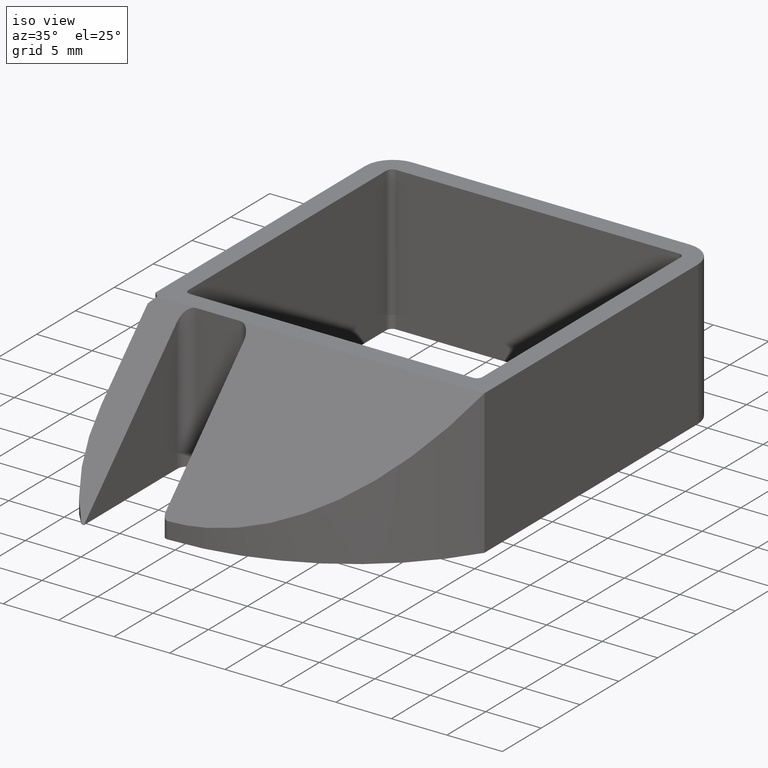
[diagram: clean part render]
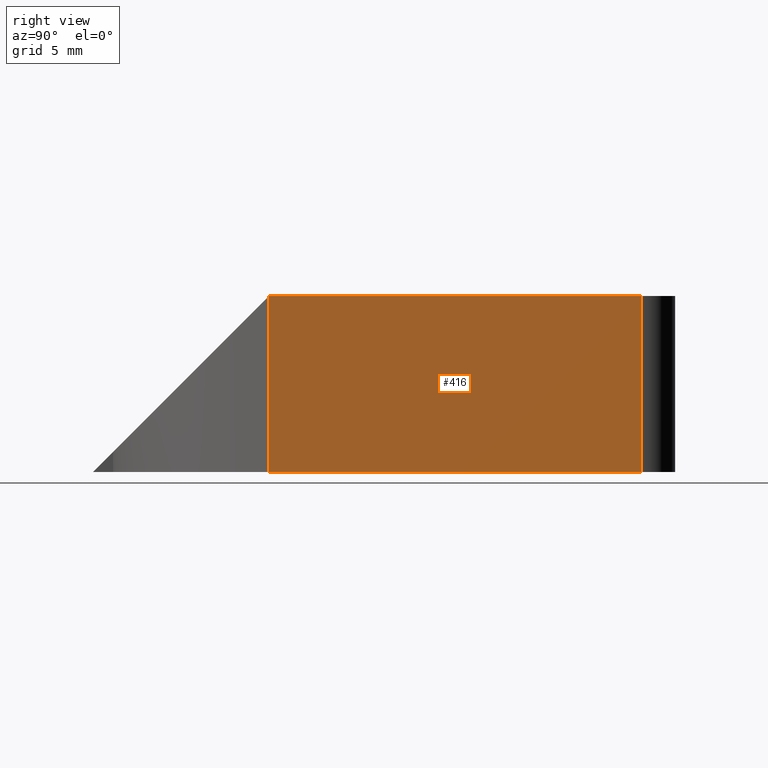
[diagram: tour spotlight — one face highlighted and labeled with its STEP entity id]
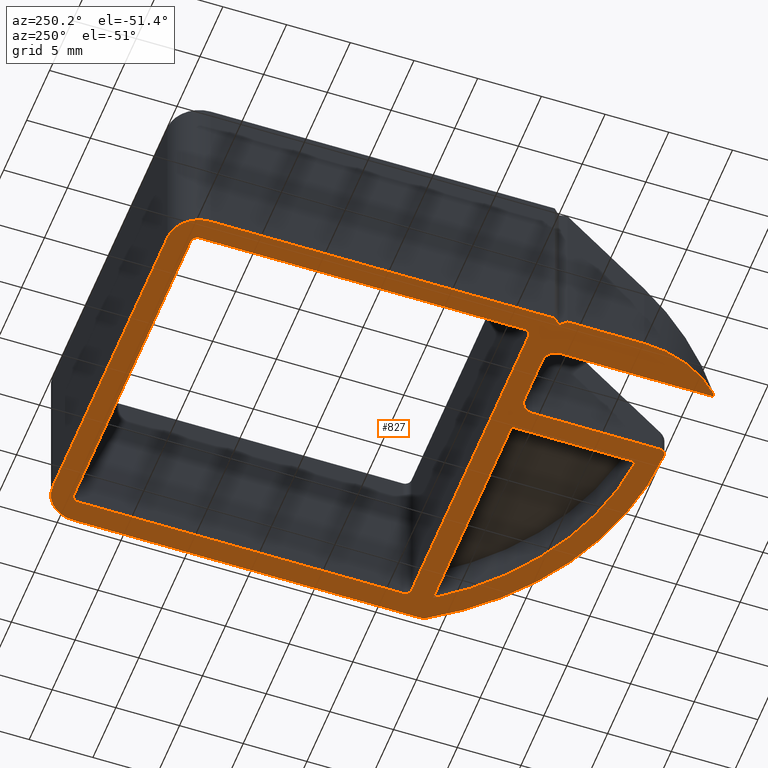
[diagram: tour spotlight — one face highlighted and labeled with its STEP entity id]
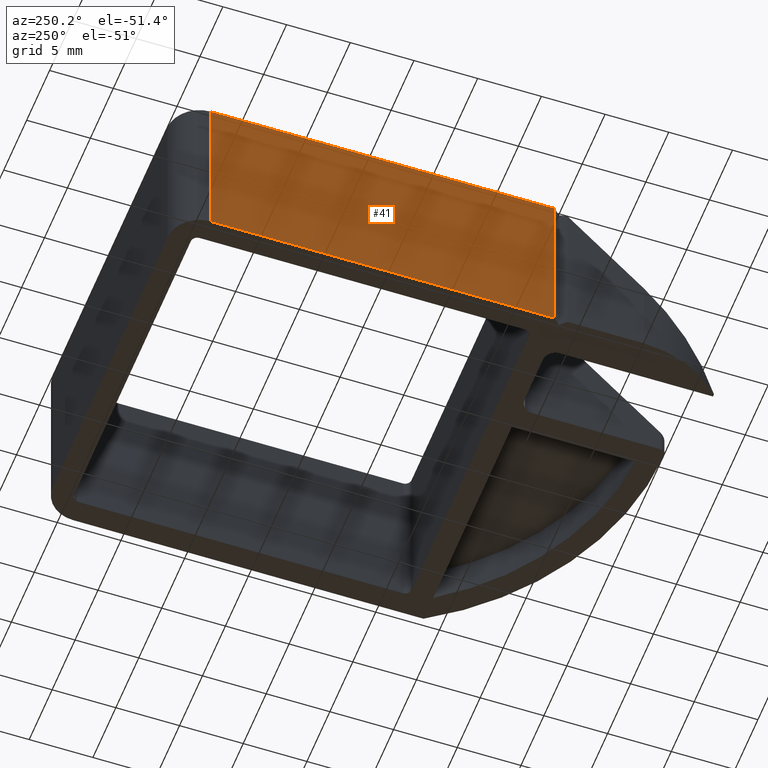
[diagram: tour spotlight — one face highlighted and labeled with its STEP entity id]
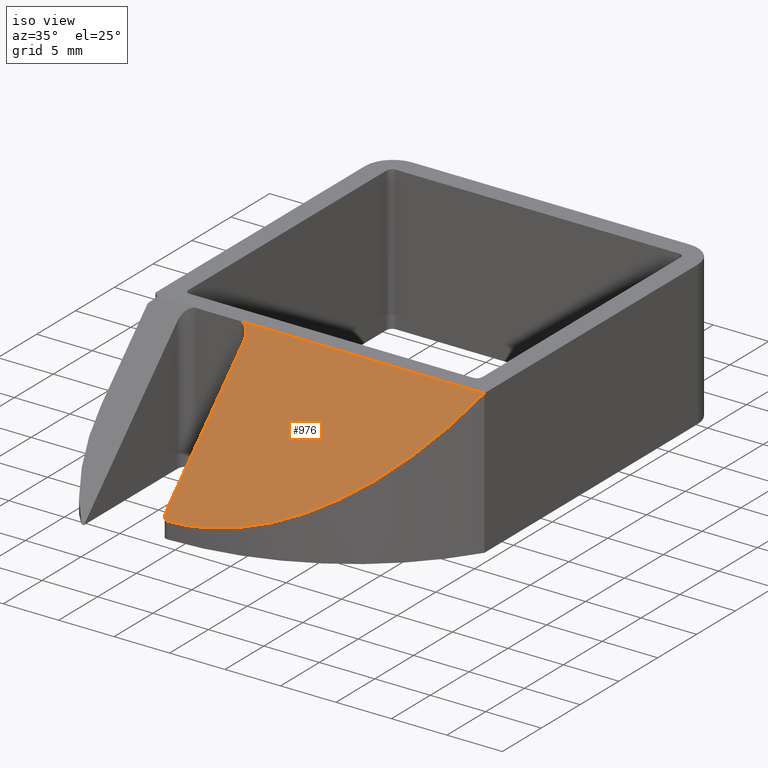
[diagram: tour spotlight — one face highlighted and labeled with its STEP entity id]
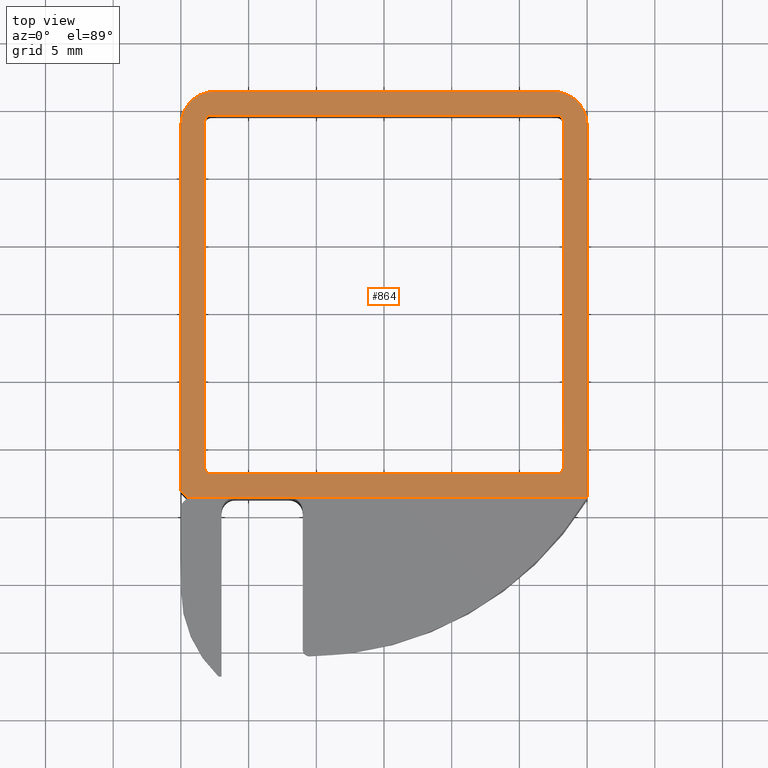
[diagram: tour spotlight — one face highlighted and labeled with its STEP entity id]
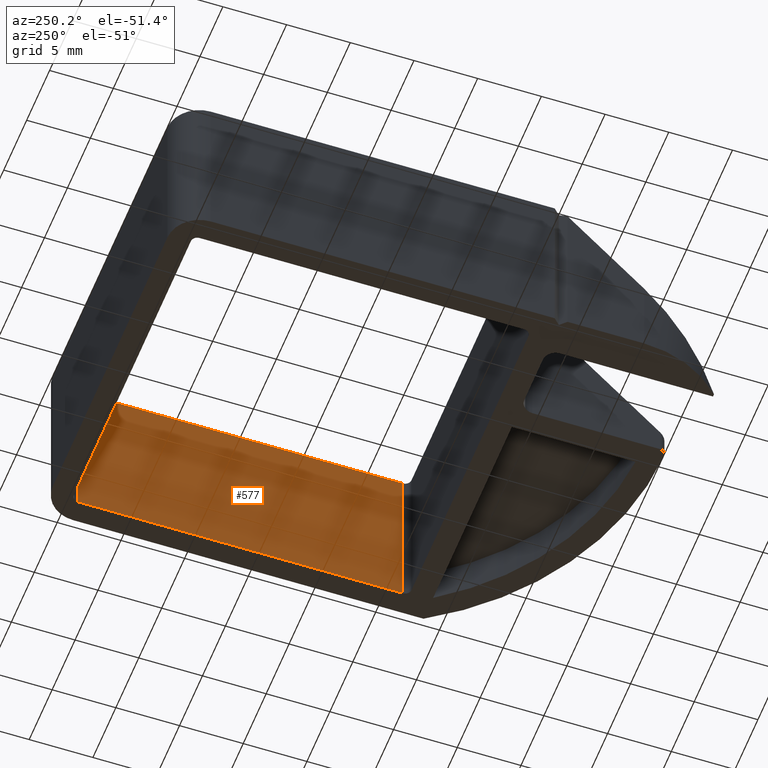
[diagram: tour spotlight — one face highlighted and labeled with its STEP entity id]
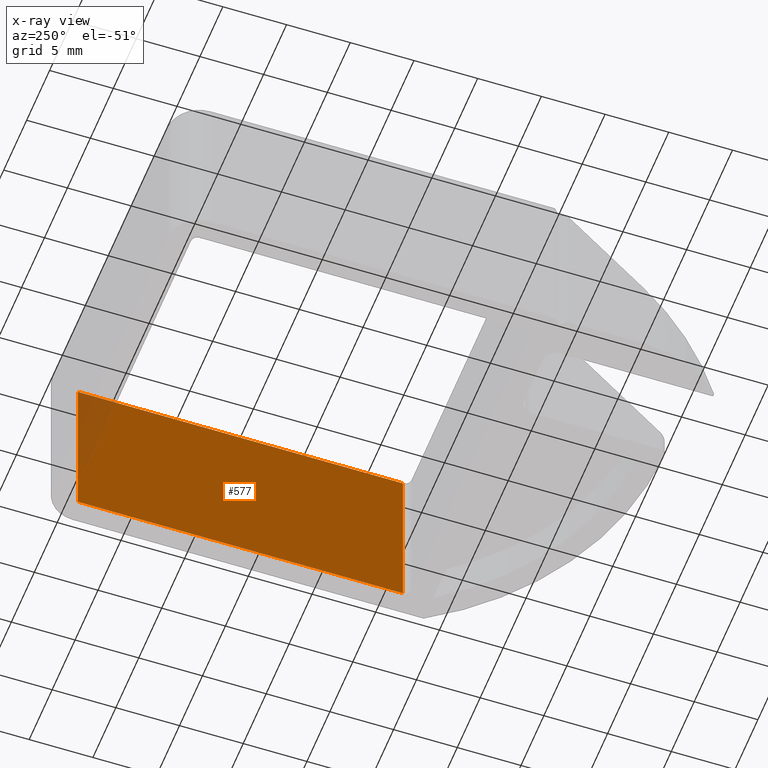
[diagram: x-ray of the same camera — body ghosted, this tour face saturated]
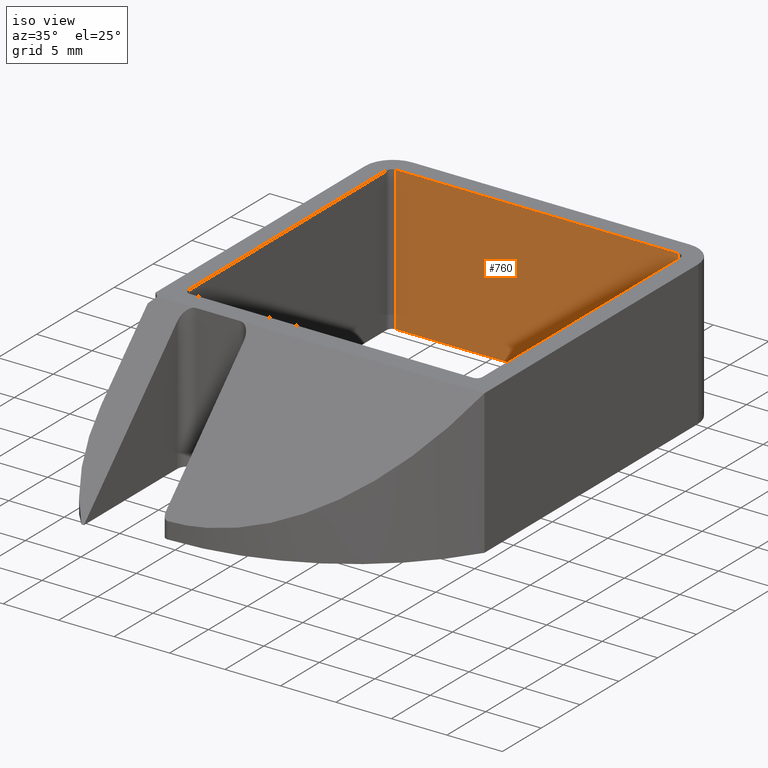
[diagram: tour spotlight — one face highlighted and labeled with its STEP entity id]
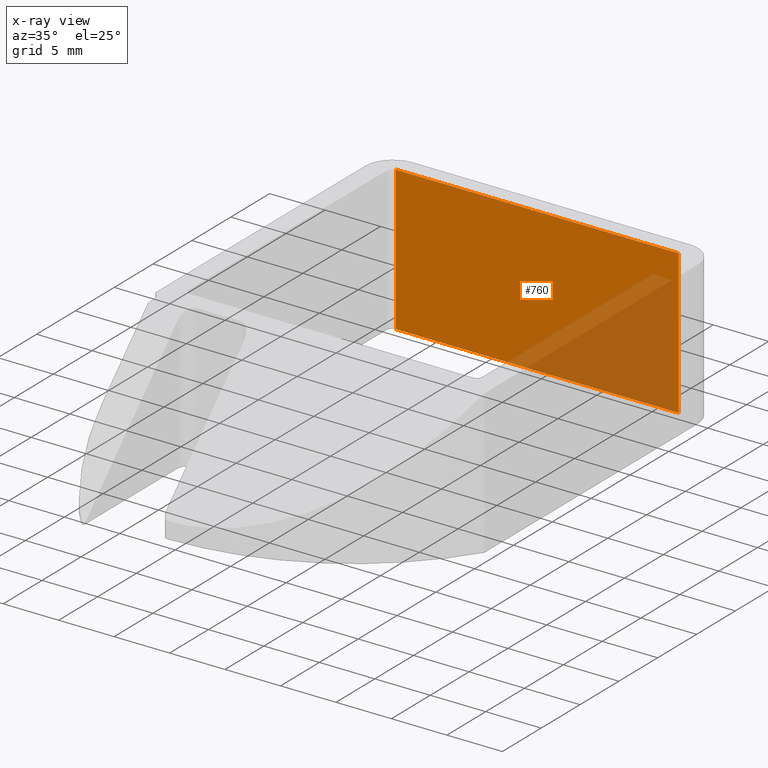
[diagram: x-ray of the same camera — body ghosted, this tour face saturated]
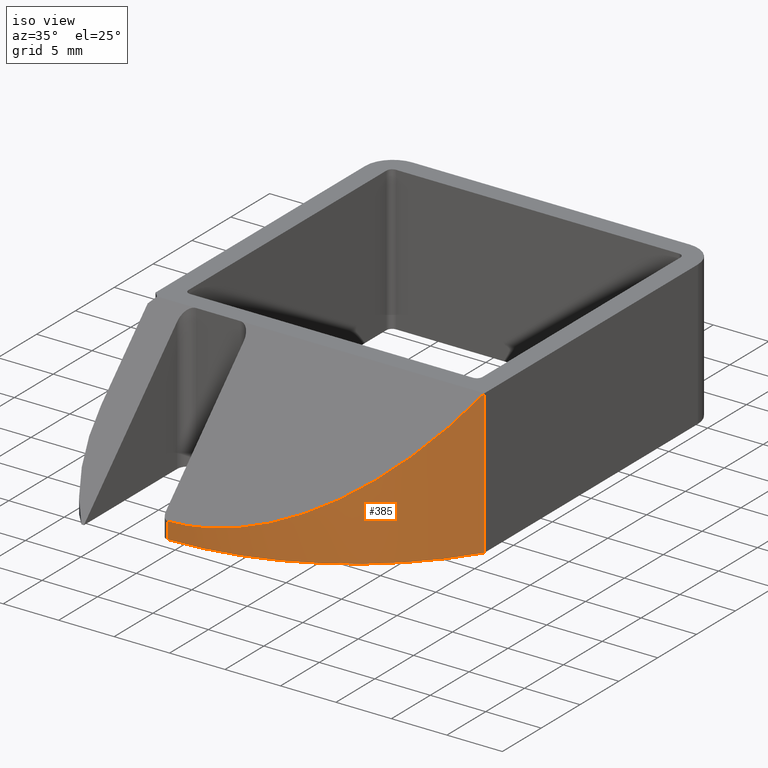
[diagram: tour spotlight — one face highlighted and labeled with its STEP entity id]
A machine part: a face-by-face anatomy tour. The part has 32 B-rep faces; the first image is the clean iso view, then the 8 largest visible faces are spotlighted one at a time (largest first), each with its STEP entity span.

Face 1 — right view, entity #416. In plain terms, the highlighted planar face has unit normal (1, 0, 0).
Definition (entity closure, byte-faithful):
#358=CARTESIAN_POINT('',(0.0,-13.749999999999998,0.0));
#359=VERTEX_POINT('',#358);
#367=CARTESIAN_POINT('',(0.0,-13.749999999999998,12.999999999999773));
#368=VERTEX_POINT('',#367);
#369=CARTESIAN_POINT('',(0.0,-13.749999999999998,0.0));
#370=DIRECTION('',(0.0,0.0,1.0));
#371=VECTOR('',#370,12.999999999999773);
#372=LINE('',#369,#371);
#373=EDGE_CURVE('',#359,#368,#372,.T.);
#386=CARTESIAN_POINT('',(0.0,-13.749999999999998,0.0));
#387=DIRECTION('',(1.0,0.0,0.0));
#388=DIRECTION('',(0.0,1.0,0.0));
#389=AXIS2_PLACEMENT_3D('',#386,#387,#388);
#390=PLANE('',#389);
#391=CARTESIAN_POINT('',(0.0,13.750000000000002,1.776357E-015));
#392=VERTEX_POINT('',#391);
#393=CARTESIAN_POINT('',(3.367779E-015,-13.749999999999998,-1.591422E-015));
#394=DIRECTION('',(0.0,1.0,0.0));
#395=VECTOR('',#394,27.500000000000000);
#396=LINE('',#393,#395);
#397=EDGE_CURVE('',#359,#392,#396,.T.);
#398=ORIENTED_EDGE('',*,*,#397,.T.);
#399=CARTESIAN_POINT('',(0.0,13.750000000000002,12.999999999999774));
#400=VERTEX_POINT('',#399);
#401=CARTESIAN_POINT('',(0.0,13.750000000000002,1.776357E-015));
#402=DIRECTION('',(0.0,0.0,1.0));
#403=VECTOR('',#402,12.999999999999773);
#404=LINE('',#401,#403);
#405=EDGE_CURVE('',#392,#400,#404,.T.);
#406=ORIENTED_EDGE('',*,*,#405,.T.);
#407=CARTESIAN_POINT('',(3.367779E-015,-13.749999999999998,12.999999999999771));
#408=DIRECTION('',(0.0,1.0,0.0));
#409=VECTOR('',#408,27.500000000000000);
#410=LINE('',#407,#409);
#411=EDGE_CURVE('',#368,#400,#410,.T.);
#412=ORIENTED_EDGE('',*,*,#411,.F.);
#413=ORIENTED_EDGE('',*,*,#373,.F.);
#414=EDGE_LOOP('',(#398,#406,#412,#413));
#415=FACE_OUTER_BOUND('',#414,.T.);
#416=ADVANCED_FACE('',(#415),#390,.T.);

Face 2 — auxiliary view, entity #827. In plain terms, the highlighted planar face has unit normal (0, 0, 1).
Definition (entity closure, byte-faithful):
#7=CARTESIAN_POINT('',(-29.999999999999886,13.749999999999998,1.776357E-015));
#8=VERTEX_POINT('',#7);
#9=CARTESIAN_POINT('',(-29.999999999999883,-13.249472180259092,0.0));
#10=VERTEX_POINT('',#9);
#11=CARTESIAN_POINT('',(-29.999999999999886,13.749999999999998,3.306482E-015));
#12=DIRECTION('',(0.0,-1.0,0.0));
#13=VECTOR('',#12,26.999472180259090);
#14=LINE('',#11,#13);
#15=EDGE_CURVE('',#8,#10,#14,.T.);
#47=CARTESIAN_POINT('',(-29.499999999999996,-13.750000000000002,0.0));
#48=VERTEX_POINT('',#47);
#49=CARTESIAN_POINT('',(-29.999999999999883,-13.249472180259092,6.129698E-017));
#50=DIRECTION('',(0.706733654818065,-0.707479710767383,-8.664128E-017));
#51=VECTOR('',#50,0.707480104550280);
#52=LINE('',#49,#51);
#53=EDGE_CURVE('',#10,#48,#52,.T.);
#78=CARTESIAN_POINT('',(-29.999999999999883,-14.253249249289185,0.0));
#79=VERTEX_POINT('',#78);
#80=CARTESIAN_POINT('',(-29.499999999999996,-13.750000000000002,0.0));
#81=DIRECTION('',(-0.704812959663884,-0.709393185680435,-8.687561E-017));
#82=VECTOR('',#81,0.709408067976403);
#83=LINE('',#80,#82);
#84=EDGE_CURVE('',#48,#79,#83,.T.);
#109=CARTESIAN_POINT('',(-29.999999999999883,-20.250000000000000,-4.440892E-016));
#110=VERTEX_POINT('',#109);
#111=CARTESIAN_POINT('',(-29.999999999999883,-14.253249249289185,0.0));
#112=DIRECTION('',(0.0,-1.0,0.0));
#113=VECTOR('',#112,5.996750750710815);
#114=LINE('',#111,#113);
#115=EDGE_CURVE('',#79,#110,#114,.T.);
#140=CARTESIAN_POINT('',(-27.224949798994313,-26.750000000000000,-8.881784E-016));
#141=VERTEX_POINT('',#140);
#150=CARTESIAN_POINT('',(-20.999999999999883,-20.250000000000000,-4.440892E-016));
#151=DIRECTION('',(1.499760E-032,-1.224647E-016,1.0));
#152=DIRECTION('',(-1.0,-1.224647E-016,0.0));
#153=AXIS2_PLACEMENT_3D('',#150,#151,#152);
#154=CIRCLE('',#153,9.0);
#155=EDGE_CURVE('',#110,#141,#154,.T.);
#165=CARTESIAN_POINT('',(-26.999999999963844,-26.749999999997499,-8.881784E-016));
#166=VERTEX_POINT('',#165);
#167=CARTESIAN_POINT('',(-26.999999999963848,-14.749999999974081,0.0));
#168=VERTEX_POINT('',#167);
#169=CARTESIAN_POINT('',(-26.999999999963844,-26.749999999997499,-8.881784E-016));
#170=DIRECTION('',(0.0,1.0,0.0));
#171=VECTOR('',#170,12.000000000023419);
#172=LINE('',#169,#171);
#173=EDGE_CURVE('',#166,#168,#172,.T.);
#197=CARTESIAN_POINT('',(-25.999999999963848,-13.749999999974078,0.0));
#198=VERTEX_POINT('',#197);
#199=CARTESIAN_POINT('',(-25.999999999963848,-14.749999999974078,0.0));
#200=DIRECTION('',(-1.499760E-032,1.224647E-016,-1.0));
#201=DIRECTION('',(-1.224647E-016,1.0,1.224647E-016));
#202=AXIS2_PLACEMENT_3D('',#199,#200,#201);
#203=CIRCLE('',#202,1.0);
#204=EDGE_CURVE('',#168,#198,#203,.T.);
#230=CARTESIAN_POINT('',(-21.999999999963734,-13.749999999974078,0.0));
#231=VERTEX_POINT('',#230);
#232=CARTESIAN_POINT('',(-25.999999999963848,-13.749999999974078,0.0));
#233=DIRECTION('',(1.0,0.0,0.0));
#234=VECTOR('',#233,4.000000000000114);
#235=LINE('',#232,#234);
#236=EDGE_CURVE('',#198,#231,#235,.T.);
#261=CARTESIAN_POINT('',(-20.999999999963734,-14.749999999974078,0.0));
#262=VERTEX_POINT('',#261);
#263=CARTESIAN_POINT('',(-21.999999999963734,-14.749999999974078,0.0));
#264=DIRECTION('',(-1.499760E-032,1.224647E-016,-1.0));
#265=DIRECTION('',(1.0,1.224647E-016,0.0));
#266=AXIS2_PLACEMENT_3D('',#263,#264,#265);
#267=CIRCLE('',#266,1.0);
#268=EDGE_CURVE('',#231,#262,#267,.T.);
#294=CARTESIAN_POINT('',(-20.999999999963730,-24.753660414799469,-6.661338E-016));
#295=VERTEX_POINT('',#294);
#296=CARTESIAN_POINT('',(-20.999999999963730,-14.749999999974079,5.589613E-016));
#297=DIRECTION('',(0.0,-1.0,0.0));
#298=VECTOR('',#297,10.003660414825390);
#299=LINE('',#296,#298);
#300=EDGE_CURVE('',#262,#295,#299,.T.);
#325=CARTESIAN_POINT('',(-20.497180464879531,-25.253652464958122,-6.661338E-016));
#326=VERTEX_POINT('',#325);
#327=CARTESIAN_POINT('',(-20.499999999963730,-24.753660414799469,-6.661338E-016));
#328=DIRECTION('',(1.499760E-032,-1.224647E-016,1.0));
#329=DIRECTION('',(-1.0,-1.224647E-016,0.0));
#330=AXIS2_PLACEMENT_3D('',#327,#328,#329);
#331=CIRCLE('',#330,0.500000000000000);
#332=EDGE_CURVE('',#295,#326,#331,.T.);
#358=CARTESIAN_POINT('',(0.0,-13.749999999999998,0.0));
#359=VERTEX_POINT('',#358);
#360=CARTESIAN_POINT('',(-20.633966547492491,-0.997187538485150,6.661338E-016));
#361=DIRECTION('',(1.482966E-032,-1.224647E-016,1.0));
#362=DIRECTION('',(0.005639070168398,-0.999984100317418,-1.224627E-016));
#363=AXIS2_PLACEMENT_3D('',#360,#361,#362);
#364=CIRCLE('',#363,24.256850602697995);
#365=EDGE_CURVE('',#326,#359,#364,.T.);
#391=CARTESIAN_POINT('',(0.0,13.750000000000002,1.776357E-015));
#392=VERTEX_POINT('',#391);
#393=CARTESIAN_POINT('',(3.367779E-015,-13.749999999999998,-1.591422E-015));
#394=DIRECTION('',(0.0,1.0,0.0));
#395=VECTOR('',#394,27.500000000000000);
#396=LINE('',#393,#395);
#397=EDGE_CURVE('',#359,#392,#396,.T.);
#422=CARTESIAN_POINT('',(-2.500000000000000,16.250000000000000,1.776357E-015));
#423=VERTEX_POINT('',#422);
#424=CARTESIAN_POINT('',(-2.500000000000000,13.750000000000002,1.776357E-015));
#425=DIRECTION('',(1.499760E-032,-1.224647E-016,1.0));
#426=DIRECTION('',(-1.0,-1.224647E-016,0.0));
#427=AXIS2_PLACEMENT_3D('',#424,#425,#426);
#428=CIRCLE('',#427,2.500000000000000);
#429=EDGE_CURVE('',#392,#423,#428,.T.);
#455=CARTESIAN_POINT('',(-27.500000000000000,16.250000000000000,1.776357E-015));
#456=VERTEX_POINT('',#455);
#457=CARTESIAN_POINT('',(-2.500000000000000,16.250000000000004,1.776357E-015));
#458=DIRECTION('',(-1.0,0.0,0.0));
#459=VECTOR('',#458,25.0);
#460=LINE('',#457,#459);
#461=EDGE_CURVE('',#423,#456,#460,.T.);
#486=CARTESIAN_POINT('',(-27.500000000000000,13.749999999999998,1.776357E-015));
#487=DIRECTION('',(1.499760E-032,-1.224647E-016,1.0));
#488=DIRECTION('',(-1.0,-1.224647E-016,0.0));
#489=AXIS2_PLACEMENT_3D('',#486,#487,#488);
#490=CIRCLE('',#489,2.500000000000000);
#491=EDGE_CURVE('',#456,#8,#490,.T.);
#510=CARTESIAN_POINT('',(-2.249999999999886,14.500000000000002,1.776357E-015));
#511=VERTEX_POINT('',#510);
#512=CARTESIAN_POINT('',(-1.750000000000000,14.000000000000002,1.776357E-015));
#513=VERTEX_POINT('',#512);
#514=CARTESIAN_POINT('',(-2.249999999999886,14.000000000000002,1.776357E-015));
#515=DIRECTION('',(-1.499760E-032,1.224647E-016,-1.0));
#516=DIRECTION('',(-1.0,-1.224647E-016,0.0));
#517=AXIS2_PLACEMENT_3D('',#514,#515,#516);
#518=CIRCLE('',#517,0.500000000000000);
#519=EDGE_CURVE('',#511,#513,#518,.T.);
#552=CARTESIAN_POINT('',(-1.749999999999886,-11.499999999999998,2.220446E-016));
#553=VERTEX_POINT('',#552);
#554=CARTESIAN_POINT('',(-1.750000000000000,14.000000000000002,1.776357E-015));
#555=DIRECTION('',(0.0,-1.0,0.0));
#556=VECTOR('',#555,25.500000000000000);
#557=LINE('',#554,#556);
#558=EDGE_CURVE('',#513,#553,#557,.T.);
#583=CARTESIAN_POINT('',(-2.249999999999886,-12.000000000000112,0.0));
#584=VERTEX_POINT('',#583);
#585=CARTESIAN_POINT('',(-2.249999999999886,-11.499999999999998,2.220446E-016));
#586=DIRECTION('',(-1.499760E-032,1.224647E-016,-1.0));
#587=DIRECTION('',(-1.0,-1.224647E-016,0.0));
#588=AXIS2_PLACEMENT_3D('',#585,#586,#587);
#589=CIRCLE('',#588,0.500000000000000);
#590=EDGE_CURVE('',#553,#584,#589,.T.);
#616=CARTESIAN_POINT('',(-27.750000000000000,-12.000000000000002,0.0));
#617=VERTEX_POINT('',#616);
#618=CARTESIAN_POINT('',(-2.249999999999886,-12.000000000000112,0.0));
#619=DIRECTION('',(-1.0,0.0,0.0));
#620=VECTOR('',#619,25.500000000000114);
#621=LINE('',#618,#620);
#622=EDGE_CURVE('',#584,#617,#621,.T.);
#647=CARTESIAN_POINT('',(-28.249999999999886,-11.500000000000002,2.220446E-016));
#648=VERTEX_POINT('',#647);
#649=CARTESIAN_POINT('',(-27.750000000000000,-11.500000000000002,2.220446E-016));
#650=DIRECTION('',(-1.499760E-032,1.224647E-016,-1.0));
#651=DIRECTION('',(-1.0,-1.224647E-016,0.0));
#652=AXIS2_PLACEMENT_3D('',#649,#650,#651);
#653=CIRCLE('',#652,0.500000000000000);
#654=EDGE_CURVE('',#617,#648,#653,.T.);
#680=CARTESIAN_POINT('',(-28.250000000000000,13.999999999999998,1.776357E-015));
#681=VERTEX_POINT('',#680);
#682=CARTESIAN_POINT('',(-28.249999999999886,-11.500000000000002,2.220446E-016));
#683=DIRECTION('',(0.0,1.0,0.0));
#684=VECTOR('',#683,25.500000000000000);
#685=LINE('',#682,#684);
#686=EDGE_CURVE('',#648,#681,#685,.T.);
#711=CARTESIAN_POINT('',(-27.750000000000000,14.499999999999998,1.776357E-015));
#712=VERTEX_POINT('',#711);
#713=CARTESIAN_POINT('',(-27.750000000000000,13.999999999999998,1.776357E-015));
#714=DIRECTION('',(-1.499760E-032,1.224647E-016,-1.0));
#715=DIRECTION('',(-1.0,-1.224647E-016,0.0));
#716=AXIS2_PLACEMENT_3D('',#713,#714,#715);
#717=CIRCLE('',#716,0.500000000000000);
#718=EDGE_CURVE('',#681,#712,#717,.T.);
#744=CARTESIAN_POINT('',(-27.750000000000000,14.499999999999998,1.776357E-015));
#745=DIRECTION('',(1.0,0.0,0.0));
#746=VECTOR('',#745,25.500000000000114);
#747=LINE('',#744,#746);
#748=EDGE_CURVE('',#712,#511,#747,.T.);
#761=CARTESIAN_POINT('',(3.000120002173503,20.550120002246448,1.998401E-015));
#762=DIRECTION('',(0.0,0.0,1.0));
#763=DIRECTION('',(-1.0,0.0,0.0));
#764=AXIS2_PLACEMENT_3D('',#761,#762,#763);
#765=PLANE('',#764);
#766=ORIENTED_EDGE('',*,*,#491,.F.);
#767=ORIENTED_EDGE('',*,*,#461,.F.);
#768=ORIENTED_EDGE('',*,*,#429,.F.);
#769=ORIENTED_EDGE('',*,*,#397,.F.);
#770=ORIENTED_EDGE('',*,*,#365,.F.);
#771=ORIENTED_EDGE('',*,*,#332,.F.);
#772=ORIENTED_EDGE('',*,*,#300,.F.);
#773=ORIENTED_EDGE('',*,*,#268,.F.);
#774=ORIENTED_EDGE('',*,*,#236,.F.);
#775=ORIENTED_EDGE('',*,*,#204,.F.);
#776=ORIENTED_EDGE('',*,*,#173,.F.);
#777=CARTESIAN_POINT('',(-27.224949798994313,-26.750000000000000,-8.881784E-016));
#778=DIRECTION('',(1.0,1.111853E-011,1.361527E-027));
#779=VECTOR('',#778,0.224949799030469);
#780=LINE('',#777,#779);
#781=EDGE_CURVE('',#141,#166,#780,.T.);
#782=ORIENTED_EDGE('',*,*,#781,.F.);
#783=ORIENTED_EDGE('',*,*,#155,.F.);
#784=ORIENTED_EDGE('',*,*,#115,.F.);
#785=ORIENTED_EDGE('',*,*,#84,.F.);
#786=ORIENTED_EDGE('',*,*,#53,.F.);
#787=ORIENTED_EDGE('',*,*,#15,.F.);
#788=EDGE_LOOP('',(#766,#767,#768,#769,#770,#771,#772,#773,#774,#775,#776,#782,#783,#784,#785,#786,#787));
#789=FACE_OUTER_BOUND('',#788,.T.);
#790=ORIENTED_EDGE('',*,*,#748,.F.);
#791=ORIENTED_EDGE('',*,*,#718,.F.);
#792=ORIENTED_EDGE('',*,*,#686,.F.);
#793=ORIENTED_EDGE('',*,*,#654,.F.);
#794=ORIENTED_EDGE('',*,*,#622,.F.);
#795=ORIENTED_EDGE('',*,*,#590,.F.);
#796=ORIENTED_EDGE('',*,*,#558,.F.);
#797=ORIENTED_EDGE('',*,*,#519,.F.);
#798=EDGE_LOOP('',(#790,#791,#792,#793,#794,#795,#796,#797));
#799=FACE_BOUND('',#798,.T.);
#800=CARTESIAN_POINT('',(-2.088775840096901,-13.749999999999998,0.0));
#801=VERTEX_POINT('',#800);
#802=CARTESIAN_POINT('',(-19.249999999994994,-23.461447166823291,-6.661338E-016));
#803=VERTEX_POINT('',#802);
#804=CARTESIAN_POINT('',(-20.633966547519325,-0.997187538526987,6.661338E-016));
#805=DIRECTION('',(-1.540744E-032,1.224647E-016,-1.000000000000000));
#806=DIRECTION('',(0.061490902123748,-0.998107643972336,-1.222329E-016));
#807=AXIS2_PLACEMENT_3D('',#804,#805,#806);
#808=CIRCLE('',#807,22.506850602698048);
#809=EDGE_CURVE('',#801,#803,#808,.T.);
#810=ORIENTED_EDGE('',*,*,#809,.F.);
#811=CARTESIAN_POINT('',(-19.249999999999883,-13.749999999999998,0.0));
#812=VERTEX_POINT('',#811);
#813=CARTESIAN_POINT('',(-19.249999999999883,-13.749999999999998,0.0));
#814=DIRECTION('',(1.0,0.0,0.0));
#815=VECTOR('',#814,17.161224159902986);
#816=LINE('',#813,#815);
#817=EDGE_CURVE('',#812,#801,#816,.T.);
#818=ORIENTED_EDGE('',*,*,#817,.F.);
#819=CARTESIAN_POINT('',(-19.249999999994994,-23.461447166823291,-6.661338E-016));
#820=DIRECTION('',(-5.033785E-013,1.0,1.224647E-016));
#821=VECTOR('',#820,9.711447166823291);
#822=LINE('',#819,#821);
#823=EDGE_CURVE('',#803,#812,#822,.T.);
#824=ORIENTED_EDGE('',*,*,#823,.F.);
#825=EDGE_LOOP('',(#810,#818,#824));
#826=FACE_BOUND('',#825,.T.);
#827=ADVANCED_FACE('',(#789,#799,#826),#765,.F.);

Face 3 — auxiliary view, entity #41. In plain terms, the highlighted planar face has unit normal (-1, 0, 0).
Definition (entity closure, byte-faithful):
#2=CARTESIAN_POINT('',(-29.999999999999886,13.749999999999998,1.776357E-015));
#3=DIRECTION('',(-1.0,0.0,0.0));
#4=DIRECTION('',(0.0,-1.0,0.0));
#5=AXIS2_PLACEMENT_3D('',#2,#3,#4);
#6=PLANE('',#5);
#7=CARTESIAN_POINT('',(-29.999999999999886,13.749999999999998,1.776357E-015));
#8=VERTEX_POINT('',#7);
#9=CARTESIAN_POINT('',(-29.999999999999883,-13.249472180259092,0.0));
#10=VERTEX_POINT('',#9);
#11=CARTESIAN_POINT('',(-29.999999999999886,13.749999999999998,3.306482E-015));
#12=DIRECTION('',(0.0,-1.0,0.0));
#13=VECTOR('',#12,26.999472180259090);
#14=LINE('',#11,#13);
#15=EDGE_CURVE('',#8,#10,#14,.T.);
#16=ORIENTED_EDGE('',*,*,#15,.T.);
#17=CARTESIAN_POINT('',(-29.999999999999883,-13.249472180259092,12.999999999999773));
#18=VERTEX_POINT('',#17);
#19=CARTESIAN_POINT('',(-29.999999999999883,-13.249472180259092,0.0));
#20=DIRECTION('',(0.0,0.0,1.0));
#21=VECTOR('',#20,12.999999999999773);
#22=LINE('',#19,#21);
#23=EDGE_CURVE('',#10,#18,#22,.T.);
#24=ORIENTED_EDGE('',*,*,#23,.T.);
#25=CARTESIAN_POINT('',(-29.999999999999886,13.749999999999998,12.999999999999774));
#26=VERTEX_POINT('',#25);
#27=CARTESIAN_POINT('',(-29.999999999999886,13.749999999999998,12.999999999999776));
#28=DIRECTION('',(0.0,-1.0,0.0));
#29=VECTOR('',#28,26.999472180259090);
#30=LINE('',#27,#29);
#31=EDGE_CURVE('',#26,#18,#30,.T.);
#32=ORIENTED_EDGE('',*,*,#31,.F.);
#33=CARTESIAN_POINT('',(-29.999999999999886,13.749999999999998,1.776357E-015));
#34=DIRECTION('',(0.0,0.0,1.0));
#35=VECTOR('',#34,12.999999999999773);
#36=LINE('',#33,#35);
#37=EDGE_CURVE('',#8,#26,#36,.T.);
#38=ORIENTED_EDGE('',*,*,#37,.F.);
#39=EDGE_LOOP('',(#16,#24,#32,#38));
#40=FACE_OUTER_BOUND('',#39,.T.);
#41=ADVANCED_FACE('',(#40),#6,.T.);

Face 4 — iso view, entity #976. In plain terms, the highlighted planar face has unit normal (0, -0.7071, 0.7071).
Definition (entity closure, byte-faithful):
#238=CARTESIAN_POINT('',(-21.999999999963734,-13.749999999974078,12.999999999999773));
#239=VERTEX_POINT('',#238);
#270=CARTESIAN_POINT('',(-20.999999999963734,-14.749999999974078,12.000000000025807));
#271=VERTEX_POINT('',#270);
#278=CARTESIAN_POINT('',(-21.999999999963737,-14.749999999974078,12.000000000025807));
#279=DIRECTION('',(8.659561E-017,-0.707106781186541,0.707106781186554));
#280=DIRECTION('',(-8.659561E-017,0.707106781186554,0.707106781186541));
#281=AXIS2_PLACEMENT_3D('',#278,#279,#280);
#282=ELLIPSE('',#281,1.414213562373083,1.0);
#283=EDGE_CURVE('',#271,#239,#282,.T.);
#302=CARTESIAN_POINT('',(-20.999999999963730,-24.753660414799469,1.996339585200530));
#303=VERTEX_POINT('',#302);
#310=CARTESIAN_POINT('',(-20.999999999963734,-14.749999999974078,12.000000000025807));
#311=DIRECTION('',(0.0,-0.707106781186553,-0.707106781186542));
#312=VECTOR('',#311,14.147312232020814);
#313=LINE('',#310,#312);
#314=EDGE_CURVE('',#271,#303,#313,.T.);
#334=CARTESIAN_POINT('',(-20.497180464879531,-25.253652464958122,1.496347535041877));
#335=VERTEX_POINT('',#334);
#342=CARTESIAN_POINT('',(-20.499999999963734,-24.753660414799469,1.996339585200529));
#343=DIRECTION('',(-8.659561E-017,0.707106781186541,-0.707106781186554));
#344=DIRECTION('',(-8.659561E-017,0.707106781186554,0.707106781186541));
#345=AXIS2_PLACEMENT_3D('',#342,#343,#344);
#346=ELLIPSE('',#345,0.707106781186541,0.500000000000000);
#347=EDGE_CURVE('',#335,#303,#346,.T.);
#367=CARTESIAN_POINT('',(0.0,-13.749999999999998,12.999999999999773));
#368=VERTEX_POINT('',#367);
#375=CARTESIAN_POINT('',(-20.633966547492491,-0.997187538485152,25.752812461514509));
#376=DIRECTION('',(-8.659561E-017,0.707106781186541,-0.707106781186554));
#377=DIRECTION('',(-8.659561E-017,0.707106781186554,0.707106781186541));
#378=AXIS2_PLACEMENT_3D('',#375,#376,#377);
#379=ELLIPSE('',#378,34.304367102793194,24.256850602697995);
#380=EDGE_CURVE('',#368,#335,#379,.T.);
#842=CARTESIAN_POINT('',(-21.999999999963730,-13.750000000000000,12.999999999999773));
#843=DIRECTION('',(1.0,0.0,0.0));
#844=VECTOR('',#843,21.999999999963734);
#845=LINE('',#842,#844);
#846=EDGE_CURVE('',#239,#368,#845,.T.);
#964=CARTESIAN_POINT('',(-29.999999999999883,-13.750000000000002,12.999999999999773));
#965=DIRECTION('',(8.659561E-017,-0.707106781186541,0.707106781186554));
#966=DIRECTION('',(8.659561E-017,-0.707106781186554,-0.707106781186541));
#967=AXIS2_PLACEMENT_3D('',#964,#965,#966);
#968=PLANE('',#967);
#969=ORIENTED_EDGE('',*,*,#283,.F.);
#970=ORIENTED_EDGE('',*,*,#314,.T.);
#971=ORIENTED_EDGE('',*,*,#347,.F.);
#972=ORIENTED_EDGE('',*,*,#380,.F.);
#973=ORIENTED_EDGE('',*,*,#846,.F.);
#974=EDGE_LOOP('',(#969,#970,#971,#972,#973));
#975=FACE_OUTER_BOUND('',#974,.T.);
#976=ADVANCED_FACE('',(#975),#968,.T.);

Face 5 — top view, entity #864. In plain terms, the highlighted planar face has unit normal (0, 0, 1).
Definition (entity closure, byte-faithful):
#17=CARTESIAN_POINT('',(-29.999999999999883,-13.249472180259092,12.999999999999773));
#18=VERTEX_POINT('',#17);
#25=CARTESIAN_POINT('',(-29.999999999999886,13.749999999999998,12.999999999999774));
#26=VERTEX_POINT('',#25);
#27=CARTESIAN_POINT('',(-29.999999999999886,13.749999999999998,12.999999999999776));
#28=DIRECTION('',(0.0,-1.0,0.0));
#29=VECTOR('',#28,26.999472180259090);
#30=LINE('',#27,#29);
#31=EDGE_CURVE('',#26,#18,#30,.T.);
#55=CARTESIAN_POINT('',(-29.499999999999996,-13.750000000000002,12.999999999999773));
#56=VERTEX_POINT('',#55);
#63=CARTESIAN_POINT('',(-29.999999999999883,-13.249472180259092,12.999999999999773));
#64=DIRECTION('',(0.706733654818065,-0.707479710767383,0.0));
#65=VECTOR('',#64,0.707480104550280);
#66=LINE('',#63,#65);
#67=EDGE_CURVE('',#18,#56,#66,.T.);
#206=CARTESIAN_POINT('',(-25.999999999963848,-13.749999999974078,12.999999999999773));
#207=VERTEX_POINT('',#206);
#238=CARTESIAN_POINT('',(-21.999999999963734,-13.749999999974078,12.999999999999773));
#239=VERTEX_POINT('',#238);
#246=CARTESIAN_POINT('',(-25.999999999963848,-13.749999999974078,12.999999999999773));
#247=DIRECTION('',(1.0,0.0,0.0));
#248=VECTOR('',#247,4.000000000000114);
#249=LINE('',#246,#248);
#250=EDGE_CURVE('',#207,#239,#249,.T.);
#367=CARTESIAN_POINT('',(0.0,-13.749999999999998,12.999999999999773));
#368=VERTEX_POINT('',#367);
#399=CARTESIAN_POINT('',(0.0,13.750000000000002,12.999999999999774));
#400=VERTEX_POINT('',#399);
#407=CARTESIAN_POINT('',(3.367779E-015,-13.749999999999998,12.999999999999771));
#408=DIRECTION('',(0.0,1.0,0.0));
#409=VECTOR('',#408,27.500000000000000);
#410=LINE('',#407,#409);
#411=EDGE_CURVE('',#368,#400,#410,.T.);
#431=CARTESIAN_POINT('',(-2.500000000000000,16.250000000000000,12.999999999999774));
#432=VERTEX_POINT('',#431);
#439=CARTESIAN_POINT('',(-2.500000000000000,13.750000000000002,12.999999999999774));
#440=DIRECTION('',(1.499760E-032,-1.224647E-016,1.0));
#441=DIRECTION('',(-1.0,-1.224647E-016,0.0));
#442=AXIS2_PLACEMENT_3D('',#439,#440,#441);
#443=CIRCLE('',#442,2.500000000000000);
#444=EDGE_CURVE('',#400,#432,#443,.T.);
#463=CARTESIAN_POINT('',(-27.500000000000000,16.250000000000000,12.999999999999774));
#464=VERTEX_POINT('',#463);
#471=CARTESIAN_POINT('',(-2.500000000000000,16.250000000000004,12.999999999999774));
#472=DIRECTION('',(-1.0,0.0,0.0));
#473=VECTOR('',#472,25.0);
#474=LINE('',#471,#473);
#475=EDGE_CURVE('',#432,#464,#474,.T.);
#494=CARTESIAN_POINT('',(-27.500000000000000,13.749999999999998,12.999999999999774));
#495=DIRECTION('',(1.499760E-032,-1.224647E-016,1.0));
#496=DIRECTION('',(-1.0,-1.224647E-016,0.0));
#497=AXIS2_PLACEMENT_3D('',#494,#495,#496);
#498=CIRCLE('',#497,2.500000000000000);
#499=EDGE_CURVE('',#464,#26,#498,.T.);
#521=CARTESIAN_POINT('',(-1.750000000000000,14.000000000000002,12.999999999999774));
#522=VERTEX_POINT('',#521);
#529=CARTESIAN_POINT('',(-2.249999999999886,14.500000000000002,12.999999999999774));
#530=VERTEX_POINT('',#529);
#531=CARTESIAN_POINT('',(-2.249999999999886,14.000000000000002,12.999999999999774));
#532=DIRECTION('',(-1.499760E-032,1.224647E-016,-1.0));
#533=DIRECTION('',(-1.0,-1.224647E-016,0.0));
#534=AXIS2_PLACEMENT_3D('',#531,#532,#533);
#535=CIRCLE('',#534,0.500000000000000);
#536=EDGE_CURVE('',#530,#522,#535,.T.);
#560=CARTESIAN_POINT('',(-1.749999999999886,-11.499999999999998,12.999999999999773));
#561=VERTEX_POINT('',#560);
#568=CARTESIAN_POINT('',(-1.750000000000000,14.000000000000002,12.999999999999774));
#569=DIRECTION('',(0.0,-1.0,0.0));
#570=VECTOR('',#569,25.500000000000000);
#571=LINE('',#568,#570);
#572=EDGE_CURVE('',#522,#561,#571,.T.);
#592=CARTESIAN_POINT('',(-2.249999999999886,-12.000000000000112,12.999999999999773));
#593=VERTEX_POINT('',#592);
#600=CARTESIAN_POINT('',(-2.249999999999886,-11.499999999999998,12.999999999999773));
#601=DIRECTION('',(-1.499760E-032,1.224647E-016,-1.0));
#602=DIRECTION('',(-1.0,-1.224647E-016,0.0));
#603=AXIS2_PLACEMENT_3D('',#600,#601,#602);
#604=CIRCLE('',#603,0.500000000000000);
#605=EDGE_CURVE('',#561,#593,#604,.T.);
#624=CARTESIAN_POINT('',(-27.750000000000000,-12.000000000000002,12.999999999999773));
#625=VERTEX_POINT('',#624);
#632=CARTESIAN_POINT('',(-2.249999999999886,-12.000000000000112,12.999999999999773));
#633=DIRECTION('',(-1.0,0.0,0.0));
#634=VECTOR('',#633,25.500000000000114);
#635=LINE('',#632,#634);
#636=EDGE_CURVE('',#593,#625,#635,.T.);
#656=CARTESIAN_POINT('',(-28.249999999999886,-11.500000000000002,12.999999999999773));
#657=VERTEX_POINT('',#656);
#664=CARTESIAN_POINT('',(-27.750000000000000,-11.500000000000002,12.999999999999773));
#665=DIRECTION('',(-1.499760E-032,1.224647E-016,-1.0));
#666=DIRECTION('',(-1.0,-1.224647E-016,0.0));
#667=AXIS2_PLACEMENT_3D('',#664,#665,#666);
#668=CIRCLE('',#667,0.500000000000000);
#669=EDGE_CURVE('',#625,#657,#668,.T.);
#688=CARTESIAN_POINT('',(-28.250000000000000,13.999999999999998,12.999999999999774));
#689=VERTEX_POINT('',#688);
#696=CARTESIAN_POINT('',(-28.249999999999886,-11.500000000000002,12.999999999999773));
#697=DIRECTION('',(0.0,1.0,0.0));
#698=VECTOR('',#697,25.500000000000000);
#699=LINE('',#696,#698);
#700=EDGE_CURVE('',#657,#689,#699,.T.);
#720=CARTESIAN_POINT('',(-27.750000000000000,14.499999999999998,12.999999999999774));
#721=VERTEX_POINT('',#720);
#728=CARTESIAN_POINT('',(-27.750000000000000,13.999999999999998,12.999999999999774));
#729=DIRECTION('',(-1.499760E-032,1.224647E-016,-1.0));
#730=DIRECTION('',(-1.0,-1.224647E-016,0.0));
#731=AXIS2_PLACEMENT_3D('',#728,#729,#730);
#732=CIRCLE('',#731,0.500000000000000);
#733=EDGE_CURVE('',#689,#721,#732,.T.);
#751=CARTESIAN_POINT('',(-27.750000000000000,14.499999999999998,12.999999999999774));
#752=DIRECTION('',(1.0,0.0,0.0));
#753=VECTOR('',#752,25.500000000000114);
#754=LINE('',#751,#753);
#755=EDGE_CURVE('',#721,#530,#754,.T.);
#828=CARTESIAN_POINT('',(3.000120002173503,20.550120002246448,12.999999999999776));
#829=DIRECTION('',(0.0,0.0,1.0));
#830=DIRECTION('',(-1.0,0.0,0.0));
#831=AXIS2_PLACEMENT_3D('',#828,#829,#830);
#832=PLANE('',#831);
#833=ORIENTED_EDGE('',*,*,#31,.T.);
#834=ORIENTED_EDGE('',*,*,#67,.T.);
#835=CARTESIAN_POINT('',(-29.499999999999996,-13.750000000000002,12.999999999999773));
#836=DIRECTION('',(1.0,0.0,0.0));
#837=VECTOR('',#836,3.500000000036152);
#838=LINE('',#835,#837);
#839=EDGE_CURVE('',#56,#207,#838,.T.);
#840=ORIENTED_EDGE('',*,*,#839,.T.);
#841=ORIENTED_EDGE('',*,*,#250,.T.);
#842=CARTESIAN_POINT('',(-21.999999999963730,-13.750000000000000,12.999999999999773));
#843=DIRECTION('',(1.0,0.0,0.0));
#844=VECTOR('',#843,21.999999999963734);
#845=LINE('',#842,#844);
#846=EDGE_CURVE('',#239,#368,#845,.T.);
#847=ORIENTED_EDGE('',*,*,#846,.T.);
#848=ORIENTED_EDGE('',*,*,#411,.T.);
#849=ORIENTED_EDGE('',*,*,#444,.T.);
#850=ORIENTED_EDGE('',*,*,#475,.T.);
#851=ORIENTED_EDGE('',*,*,#499,.T.);
#852=EDGE_LOOP('',(#833,#834,#840,#841,#847,#848,#849,#850,#851));
#853=FACE_OUTER_BOUND('',#852,.T.);
#854=ORIENTED_EDGE('',*,*,#536,.T.);
#855=ORIENTED_EDGE('',*,*,#572,.T.);
#856=ORIENTED_EDGE('',*,*,#605,.T.);
#857=ORIENTED_EDGE('',*,*,#636,.T.);
#858=ORIENTED_EDGE('',*,*,#669,.T.);
#859=ORIENTED_EDGE('',*,*,#700,.T.);
#860=ORIENTED_EDGE('',*,*,#733,.T.);
#861=ORIENTED_EDGE('',*,*,#755,.T.);
#862=EDGE_LOOP('',(#854,#855,#856,#857,#858,#859,#860,#861));
#863=FACE_BOUND('',#862,.T.);
#864=ADVANCED_FACE('',(#853,#863),#832,.T.);

Face 6 — auxiliary view, entity #577. An x-ray twin of the same camera follows (body ghosted, this face saturated) — the face is partly hidden behind the body. In plain terms, the highlighted planar face has unit normal (-1, 0, 0).
Definition (entity closure, byte-faithful):
#512=CARTESIAN_POINT('',(-1.750000000000000,14.000000000000002,1.776357E-015));
#513=VERTEX_POINT('',#512);
#521=CARTESIAN_POINT('',(-1.750000000000000,14.000000000000002,12.999999999999774));
#522=VERTEX_POINT('',#521);
#523=CARTESIAN_POINT('',(-1.750000000000000,14.000000000000002,1.776357E-015));
#524=DIRECTION('',(0.0,0.0,1.0));
#525=VECTOR('',#524,12.999999999999773);
#526=LINE('',#523,#525);
#527=EDGE_CURVE('',#513,#522,#526,.T.);
#547=CARTESIAN_POINT('',(-1.750000000000000,14.000000000000002,1.776357E-015));
#548=DIRECTION('',(-1.0,0.0,0.0));
#549=DIRECTION('',(0.0,-1.0,0.0));
#550=AXIS2_PLACEMENT_3D('',#547,#548,#549);
#551=PLANE('',#550);
#552=CARTESIAN_POINT('',(-1.749999999999886,-11.499999999999998,2.220446E-016));
#553=VERTEX_POINT('',#552);
#554=CARTESIAN_POINT('',(-1.750000000000000,14.000000000000002,1.776357E-015));
#555=DIRECTION('',(0.0,-1.0,0.0));
#556=VECTOR('',#555,25.500000000000000);
#557=LINE('',#554,#556);
#558=EDGE_CURVE('',#513,#553,#557,.T.);
#559=ORIENTED_EDGE('',*,*,#558,.T.);
#560=CARTESIAN_POINT('',(-1.749999999999886,-11.499999999999998,12.999999999999773));
#561=VERTEX_POINT('',#560);
#562=CARTESIAN_POINT('',(-1.749999999999886,-11.499999999999998,2.220446E-016));
#563=DIRECTION('',(0.0,0.0,1.0));
#564=VECTOR('',#563,12.999999999999773);
#565=LINE('',#562,#564);
#566=EDGE_CURVE('',#553,#561,#565,.T.);
#567=ORIENTED_EDGE('',*,*,#566,.T.);
#568=CARTESIAN_POINT('',(-1.750000000000000,14.000000000000002,12.999999999999774));
#569=DIRECTION('',(0.0,-1.0,0.0));
#570=VECTOR('',#569,25.500000000000000);
#571=LINE('',#568,#570);
#572=EDGE_CURVE('',#522,#561,#571,.T.);
#573=ORIENTED_EDGE('',*,*,#572,.F.);
#574=ORIENTED_EDGE('',*,*,#527,.F.);
#575=EDGE_LOOP('',(#559,#567,#573,#574));
#576=FACE_OUTER_BOUND('',#575,.T.);
#577=ADVANCED_FACE('',(#576),#551,.T.);

Face 7 — iso view, entity #760. An x-ray twin of the same camera follows (body ghosted, this face saturated) — the face is partly hidden behind the body. In plain terms, the highlighted planar face has unit normal (0, -1, 0).
Definition (entity closure, byte-faithful):
#510=CARTESIAN_POINT('',(-2.249999999999886,14.500000000000002,1.776357E-015));
#511=VERTEX_POINT('',#510);
#529=CARTESIAN_POINT('',(-2.249999999999886,14.500000000000002,12.999999999999774));
#530=VERTEX_POINT('',#529);
#538=CARTESIAN_POINT('',(-2.249999999999886,14.500000000000002,1.776357E-015));
#539=DIRECTION('',(0.0,0.0,1.0));
#540=VECTOR('',#539,12.999999999999773);
#541=LINE('',#538,#540);
#542=EDGE_CURVE('',#511,#530,#541,.T.);
#711=CARTESIAN_POINT('',(-27.750000000000000,14.499999999999998,1.776357E-015));
#712=VERTEX_POINT('',#711);
#720=CARTESIAN_POINT('',(-27.750000000000000,14.499999999999998,12.999999999999774));
#721=VERTEX_POINT('',#720);
#722=CARTESIAN_POINT('',(-27.750000000000000,14.499999999999998,1.776357E-015));
#723=DIRECTION('',(0.0,0.0,1.0));
#724=VECTOR('',#723,12.999999999999773);
#725=LINE('',#722,#724);
#726=EDGE_CURVE('',#712,#721,#725,.T.);
#739=CARTESIAN_POINT('',(-27.750000000000000,14.499999999999998,1.776357E-015));
#740=DIRECTION('',(0.0,-1.0,0.0));
#741=DIRECTION('',(1.0,0.0,0.0));
#742=AXIS2_PLACEMENT_3D('',#739,#740,#741);
#743=PLANE('',#742);
#744=CARTESIAN_POINT('',(-27.750000000000000,14.499999999999998,1.776357E-015));
#745=DIRECTION('',(1.0,0.0,0.0));
#746=VECTOR('',#745,25.500000000000114);
#747=LINE('',#744,#746);
#748=EDGE_CURVE('',#712,#511,#747,.T.);
#749=ORIENTED_EDGE('',*,*,#748,.T.);
#750=ORIENTED_EDGE('',*,*,#542,.T.);
#751=CARTESIAN_POINT('',(-27.750000000000000,14.499999999999998,12.999999999999774));
#752=DIRECTION('',(1.0,0.0,0.0));
#753=VECTOR('',#752,25.500000000000114);
#754=LINE('',#751,#753);
#755=EDGE_CURVE('',#721,#530,#754,.T.);
#756=ORIENTED_EDGE('',*,*,#755,.F.);
#757=ORIENTED_EDGE('',*,*,#726,.F.);
#758=EDGE_LOOP('',(#749,#750,#756,#757));
#759=FACE_OUTER_BOUND('',#758,.T.);
#760=ADVANCED_FACE('',(#759),#743,.T.);

Face 8 — iso view, entity #385. In plain terms, the highlighted cylindrical surface (partial cylindrical patch) has radius 24.2569 mm, axis along (0, -0, 1).
Definition (entity closure, byte-faithful):
#325=CARTESIAN_POINT('',(-20.497180464879531,-25.253652464958122,-6.661338E-016));
#326=VERTEX_POINT('',#325);
#334=CARTESIAN_POINT('',(-20.497180464879531,-25.253652464958122,1.496347535041877));
#335=VERTEX_POINT('',#334);
#336=CARTESIAN_POINT('',(-20.497180464879531,-25.253652464958122,-6.661338E-016));
#337=DIRECTION('',(0.0,0.0,1.0));
#338=VECTOR('',#337,1.496347535041850);
#339=LINE('',#336,#338);
#340=EDGE_CURVE('',#326,#335,#339,.T.);
#353=CARTESIAN_POINT('',(-20.633966547492491,-0.997187538485150,6.661338E-016));
#354=DIRECTION('',(1.482966E-032,-1.224647E-016,1.0));
#355=DIRECTION('',(0.005639070168398,-0.999984100317418,-1.224627E-016));
#356=AXIS2_PLACEMENT_3D('',#353,#354,#355);
#357=CYLINDRICAL_SURFACE('',#356,24.256850602697995);
#358=CARTESIAN_POINT('',(0.0,-13.749999999999998,0.0));
#359=VERTEX_POINT('',#358);
#360=CARTESIAN_POINT('',(-20.633966547492491,-0.997187538485150,6.661338E-016));
#361=DIRECTION('',(1.482966E-032,-1.224647E-016,1.0));
#362=DIRECTION('',(0.005639070168398,-0.999984100317418,-1.224627E-016));
#363=AXIS2_PLACEMENT_3D('',#360,#361,#362);
#364=CIRCLE('',#363,24.256850602697995);
#365=EDGE_CURVE('',#326,#359,#364,.T.);
#366=ORIENTED_EDGE('',*,*,#365,.T.);
#367=CARTESIAN_POINT('',(0.0,-13.749999999999998,12.999999999999773));
#368=VERTEX_POINT('',#367);
#369=CARTESIAN_POINT('',(0.0,-13.749999999999998,0.0));
#370=DIRECTION('',(0.0,0.0,1.0));
#371=VECTOR('',#370,12.999999999999773);
#372=LINE('',#369,#371);
#373=EDGE_CURVE('',#359,#368,#372,.T.);
#374=ORIENTED_EDGE('',*,*,#373,.T.);
#375=CARTESIAN_POINT('',(-20.633966547492491,-0.997187538485152,25.752812461514509));
#376=DIRECTION('',(-8.659561E-017,0.707106781186541,-0.707106781186554));
#377=DIRECTION('',(-8.659561E-017,0.707106781186554,0.707106781186541));
#378=AXIS2_PLACEMENT_3D('',#375,#376,#377);
#379=ELLIPSE('',#378,34.304367102793194,24.256850602697995);
#380=EDGE_CURVE('',#368,#335,#379,.T.);
#381=ORIENTED_EDGE('',*,*,#380,.T.);
#382=ORIENTED_EDGE('',*,*,#340,.F.);
#383=EDGE_LOOP('',(#366,#374,#381,#382));
#384=FACE_OUTER_BOUND('',#383,.T.);
#385=ADVANCED_FACE('',(#384),#357,.T.);